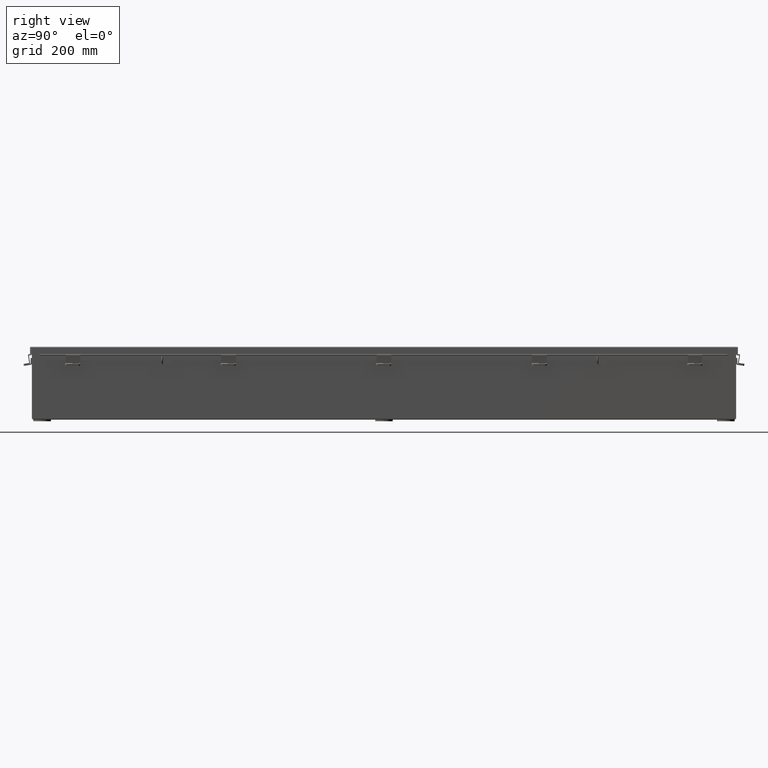
[diagram: clean part render]
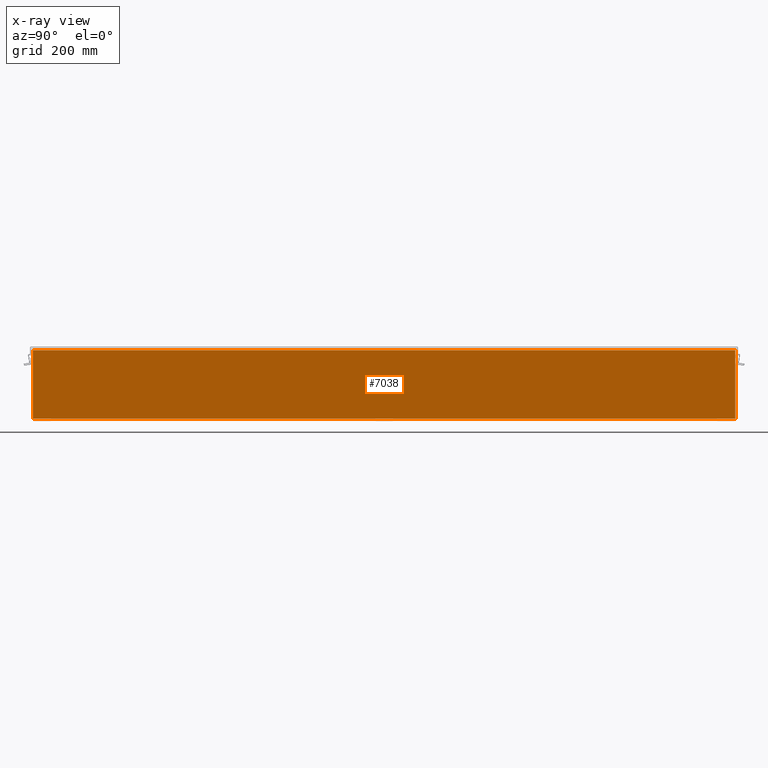
[diagram: x-ray — body ghosted, one internal face saturated and labeled with its STEP entity id]
A machine part, right view, then the same camera in x-ray: the body is ghosted and one INTERNAL B-rep face — a face not visible from any outside direction — is saturated and labeled: STEP entity #7038.
In plain terms, the highlighted planar face has unit normal (-1, 0, 0).
Its self-contained STEP definition (entity closure, byte-faithful):
#583 = VERTEX_POINT ( 'NONE', #2759 ) ;
#813 = CARTESIAN_POINT ( 'NONE',  ( 2.925300000000024000, 29.92529999999998600, 5.837600000000000100 ) ) ;
#1786 = DIRECTION ( 'NONE',  ( 1.261728323875524600E-031, 1.000000000000000000, 3.651556366905947300E-017 ) ) ;
#2127 = EDGE_CURVE ( 'NONE', #43069, #42574, #8775, .T. ) ;
#2759 = CARTESIAN_POINT ( 'NONE',  ( 2.925300000000004000, 29.92529999999999300, 0.01300000000000120900 ) ) ;
#3215 = DIRECTION ( 'NONE',  ( -3.455316574900959400E-015, -0.0000000000000000000, -1.000000000000000000 ) ) ;
#4546 = DIRECTION ( 'NONE',  ( 3.455316574900959400E-015, -1.494190951308523000E-015, 1.000000000000000000 ) ) ;
#4958 = AXIS2_PLACEMENT_3D ( 'NONE', #5242, #42325, #22178 ) ;
#5242 = CARTESIAN_POINT ( 'NONE',  ( 2.925300000000004000, 0.0000000000000000000, -1.036394832596379800E-014 ) ) ;
#6926 = CARTESIAN_POINT ( 'NONE',  ( 2.925300000000023500, 29.92529999999997900, 5.837600000000000100 ) ) ;
#7038 = ADVANCED_FACE ( 'NONE', ( #15237 ), #35551, .T. ) ;
#8775 = LINE ( 'NONE', #6926, #43499 ) ;
#15237 = FACE_OUTER_BOUND ( 'NONE', #42974, .T. ) ;
#19001 = ORIENTED_EDGE ( 'NONE', *, *, #28096, .F. ) ;
#19674 = VECTOR ( 'NONE', #1786, 39.37007874015748100 ) ;
#22178 = DIRECTION ( 'NONE',  ( 3.455316574900958600E-015, 0.0000000000000000000, 1.000000000000000000 ) ) ;
#23390 = CARTESIAN_POINT ( 'NONE',  ( 2.925300000000004000, -29.92530000000001100, 0.0000000000000000000 ) ) ;
#25860 = VERTEX_POINT ( 'NONE', #39172 ) ;
#27786 = CARTESIAN_POINT ( 'NONE',  ( 2.925300000000023500, -29.92530000000000400, 5.837600000000000100 ) ) ;
#28096 = EDGE_CURVE ( 'NONE', #583, #43069, #32547, .T. ) ;
#28150 = VECTOR ( 'NONE', #3215, 39.37007874015748100 ) ;
#28227 = ORIENTED_EDGE ( 'NONE', *, *, #2127, .F. ) ;
#30433 = VECTOR ( 'NONE', #4546, 39.37007874015748100 ) ;
#30479 = DIRECTION ( 'NONE',  ( -0.0000000000000000000, -1.000000000000000000, -0.0000000000000000000 ) ) ;
#30687 = EDGE_CURVE ( 'NONE', #25860, #583, #37559, .T. ) ;
#31310 = LINE ( 'NONE', #23390, #28150 ) ;
#31353 = ORIENTED_EDGE ( 'NONE', *, *, #30687, .F. ) ;
#32547 = LINE ( 'NONE', #41506, #30433 ) ;
#35088 = EDGE_CURVE ( 'NONE', #42574, #25860, #31310, .T. ) ;
#35551 = PLANE ( 'NONE',  #4958 ) ;
#37559 = LINE ( 'NONE', #42115, #19674 ) ;
#39172 = CARTESIAN_POINT ( 'NONE',  ( 2.925300000000004000, -29.92530000000001100, 0.01300000000000120900 ) ) ;
#41506 = CARTESIAN_POINT ( 'NONE',  ( 2.925300000000024000, 29.92529999999998600, 5.850600000000000000 ) ) ;
#42115 = CARTESIAN_POINT ( 'NONE',  ( 2.925300000000004000, -29.92530000000001100, 0.01300000000000011600 ) ) ;
#42325 = DIRECTION ( 'NONE',  ( -1.000000000000000000, 0.0000000000000000000, 3.455316574900958600E-015 ) ) ;
#42574 = VERTEX_POINT ( 'NONE', #27786 ) ;
#42598 = ORIENTED_EDGE ( 'NONE', *, *, #35088, .F. ) ;
#42974 = EDGE_LOOP ( 'NONE', ( #42598, #28227, #19001, #31353 ) ) ;
#43069 = VERTEX_POINT ( 'NONE', #813 ) ;
#43499 = VECTOR ( 'NONE', #30479, 39.37007874015748100 ) ;